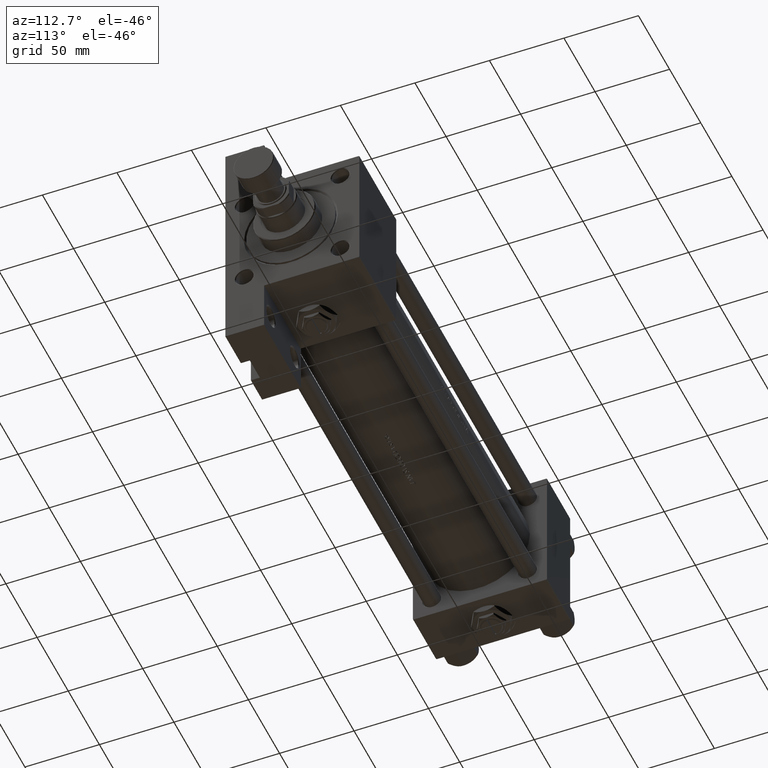
[diagram: clean part render]
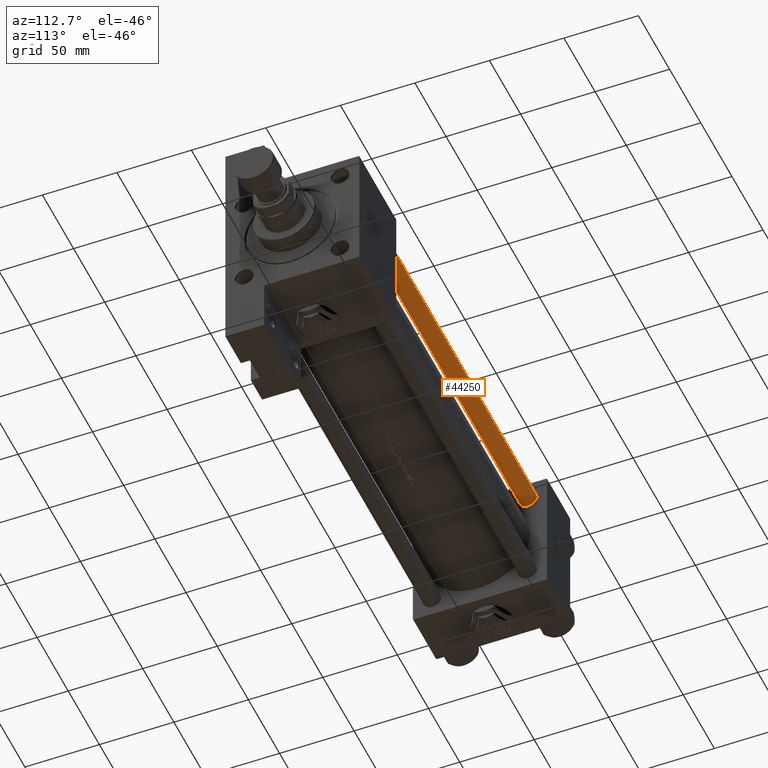
[diagram: same view with one face highlighted and labeled with its STEP entity id]
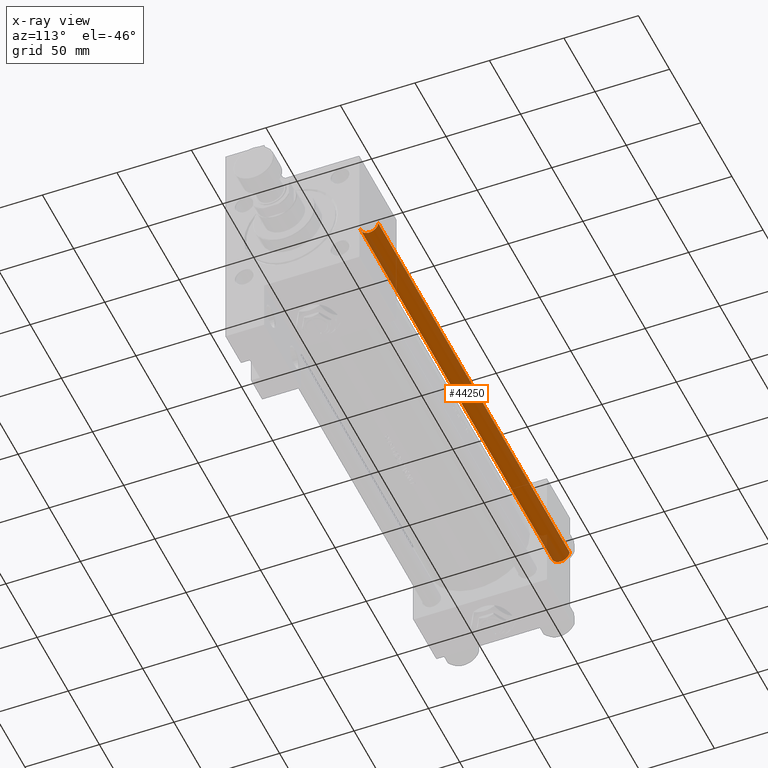
[diagram: x-ray of the same camera — body ghosted, the highlighted face saturated]
A machine part, auxiliary view. The second image highlights one B-rep face of the part: STEP entity #44250.
The next image is the same camera in x-ray: the body ghosted, the highlighted face saturated — about 8% of this face is hidden behind the body in this view.
In plain terms, the highlighted cylindrical surface (edge-blend (fillet) strip) has radius 6 mm, axis along (1, -0, 0).
Its self-contained STEP definition (entity closure, byte-faithful):
#747 = LINE ( 'NONE', #19768, #31108 ) ;
#2842 = CARTESIAN_POINT ( 'NONE',  ( 0.000000000000000000, 0.000000000000000000, 308.0000000000000000 ) ) ;
#4054 = DIRECTION ( 'NONE',  ( -0.000000000000000000, -0.000000000000000000, -1.000000000000000000 ) ) ;
#4423 = EDGE_CURVE ( 'NONE', #31801, #39620, #47565, .T. ) ;
#5187 = CARTESIAN_POINT ( 'NONE',  ( 6.000000000000000888, 7.347880794884120722E-16, 307.4999999999999432 ) ) ;
#5753 = VERTEX_POINT ( 'NONE', #42074 ) ;
#10539 = DIRECTION ( 'NONE',  ( 1.000000000000000000, 0.000000000000000000, 0.000000000000000000 ) ) ;
#10715 = DIRECTION ( 'NONE',  ( -0.000000000000000000, -0.000000000000000000, -1.000000000000000000 ) ) ;
#11891 = AXIS2_PLACEMENT_3D ( 'NONE', #20808, #24381, #28192 ) ;
#13254 = CIRCLE ( 'NONE', #49769, 6.000000000000000888 ) ;
#14821 = EDGE_CURVE ( 'NONE', #39620, #19021, #45515, .T. ) ;
#14988 = FACE_OUTER_BOUND ( 'NONE', #37367, .T. ) ;
#15241 = CYLINDRICAL_SURFACE ( 'NONE', #17765, 6.000000000000000888 ) ;
#17765 = AXIS2_PLACEMENT_3D ( 'NONE', #2842, #34059, #22871 ) ;
#19021 = VERTEX_POINT ( 'NONE', #47665 ) ;
#19768 = CARTESIAN_POINT ( 'NONE',  ( -6.000000000000000888, 0.000000000000000000, 308.0000000000000000 ) ) ;
#20808 = CARTESIAN_POINT ( 'NONE',  ( 0.000000000000000000, 0.000000000000000000, 307.4999999999999432 ) ) ;
#22871 = DIRECTION ( 'NONE',  ( -1.000000000000000000, 0.000000000000000000, 0.000000000000000000 ) ) ;
#24381 = DIRECTION ( 'NONE',  ( 0.000000000000000000, 0.000000000000000000, -1.000000000000000000 ) ) ;
#25773 = DIRECTION ( 'NONE',  ( -0.000000000000000000, -0.000000000000000000, 1.000000000000000000 ) ) ;
#27087 = CARTESIAN_POINT ( 'NONE',  ( -6.000000000000000888, 0.000000000000000000, 307.4999999999999432 ) ) ;
#28192 = DIRECTION ( 'NONE',  ( 1.000000000000000000, 0.000000000000000000, 0.000000000000000000 ) ) ;
#28733 = ORIENTED_EDGE ( 'NONE', *, *, #14821, .T. ) ;
#29005 = EDGE_CURVE ( 'NONE', #31801, #5753, #747, .T. ) ;
#29698 = EDGE_CURVE ( 'NONE', #19021, #5753, #13254, .T. ) ;
#31108 = VECTOR ( 'NONE', #4054, 1000.000000000000000 ) ;
#31801 = VERTEX_POINT ( 'NONE', #27087 ) ;
#33860 = ORIENTED_EDGE ( 'NONE', *, *, #29698, .T. ) ;
#34059 = DIRECTION ( 'NONE',  ( -0.000000000000000000, -0.000000000000000000, -1.000000000000000000 ) ) ;
#37367 = EDGE_LOOP ( 'NONE', ( #43969, #28733, #33860, #46778 ) ) ;
#38006 = VECTOR ( 'NONE', #10715, 1000.000000000000000 ) ;
#39620 = VERTEX_POINT ( 'NONE', #5187 ) ;
#42074 = CARTESIAN_POINT ( 'NONE',  ( -6.000000000000000888, 0.000000000000000000, 0.5000000000000559552 ) ) ;
#43969 = ORIENTED_EDGE ( 'NONE', *, *, #4423, .T. ) ;
#44250 = ADVANCED_FACE ( 'NONE', ( #14988 ), #15241, .T. ) ;
#45333 = CARTESIAN_POINT ( 'NONE',  ( 0.000000000000000000, 0.000000000000000000, 0.5000000000000559552 ) ) ;
#45515 = LINE ( 'NONE', #49062, #38006 ) ;
#46778 = ORIENTED_EDGE ( 'NONE', *, *, #29005, .F. ) ;
#47565 = CIRCLE ( 'NONE', #11891, 6.000000000000000888 ) ;
#47665 = CARTESIAN_POINT ( 'NONE',  ( 6.000000000000000888, 7.347880794884120722E-16, 0.5000000000000559552 ) ) ;
#49062 = CARTESIAN_POINT ( 'NONE',  ( 6.000000000000000888, 7.347880794884120722E-16, 308.0000000000000000 ) ) ;
#49769 = AXIS2_PLACEMENT_3D ( 'NONE', #45333, #25773, #10539 ) ;